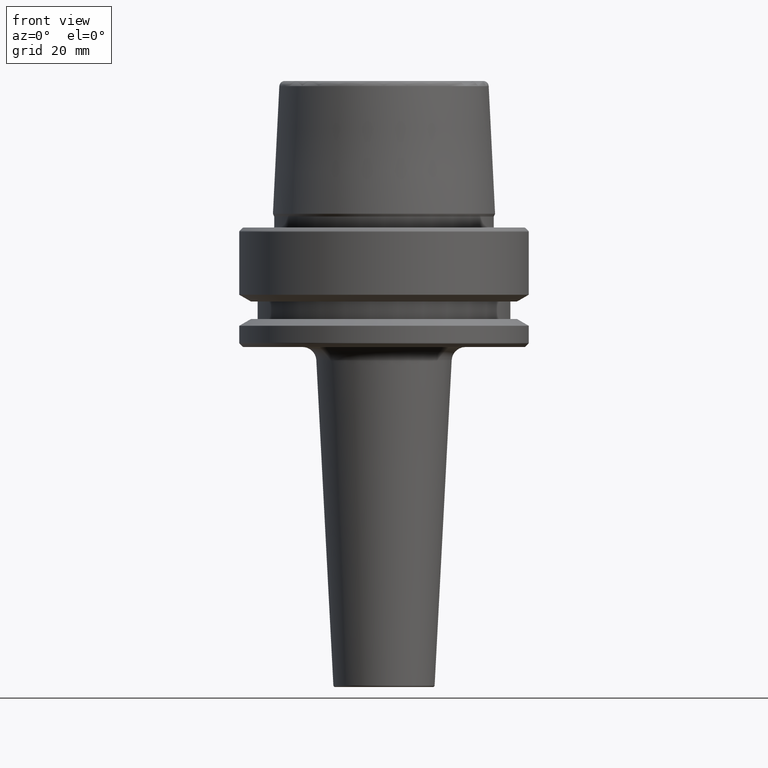
[diagram: clean part render]
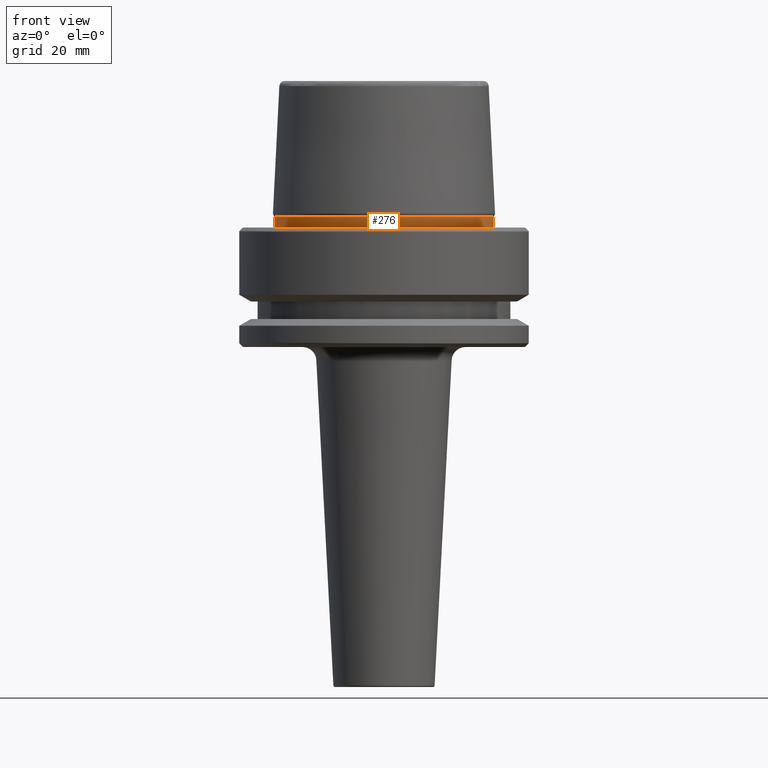
[diagram: same view with one face highlighted and labeled with its STEP entity id]
A machine part, front view. The second image highlights one B-rep face of the part: STEP entity #276.
In plain terms, the highlighted cylindrical surface (partial cylindrical patch) has radius 23.89 mm, axis along (-0, -0, 1).
Its self-contained STEP definition (entity closure, byte-faithful):
#17 = AXIS2_PLACEMENT_3D ( 'NONE', #280, #877, #300 ) ;
#59 = EDGE_CURVE ( 'NONE', #730, #761, #271, .T. ) ;
#76 = CARTESIAN_POINT ( 'NONE',  ( 23.89000000000000400, 0.0000000000000000000, 0.1312552021302954000 ) ) ;
#91 = AXIS2_PLACEMENT_3D ( 'NONE', #835, #385, #221 ) ;
#114 = AXIS2_PLACEMENT_3D ( 'NONE', #412, #433, #466 ) ;
#128 = ORIENTED_EDGE ( 'NONE', *, *, #474, .T. ) ;
#163 = CARTESIAN_POINT ( 'NONE',  ( -23.89000000000000400, 2.961613815265650600E-015, 0.1312552021302954000 ) ) ;
#213 = CARTESIAN_POINT ( 'NONE',  ( 23.89000000000000100, 0.0000000000000000000, 2.398838415132276100 ) ) ;
#220 = ORIENTED_EDGE ( 'NONE', *, *, #876, .T. ) ;
#221 = DIRECTION ( 'NONE',  ( 1.000000000000000000, 0.0000000000000000000, 0.0000000000000000000 ) ) ;
#271 = LINE ( 'NONE', #797, #1126 ) ;
#275 = CARTESIAN_POINT ( 'NONE',  ( 23.89000000000000100, 0.0000000000000000000, 78.96908074195309300 ) ) ;
#276 = ADVANCED_FACE ( 'NONE', ( #972 ), #1241, .T. ) ;
#280 = CARTESIAN_POINT ( 'NONE',  ( 0.0000000000000000000, 0.0000000000000000000, 2.398838415132276100 ) ) ;
#282 = LINE ( 'NONE', #275, #584 ) ;
#300 = DIRECTION ( 'NONE',  ( 1.000000000000000000, 0.0000000000000000000, 0.0000000000000000000 ) ) ;
#342 = DIRECTION ( 'NONE',  ( -0.0000000000000000000, -0.0000000000000000000, 1.000000000000000000 ) ) ;
#362 = VERTEX_POINT ( 'NONE', #76 ) ;
#385 = DIRECTION ( 'NONE',  ( -0.0000000000000000000, -0.0000000000000000000, 1.000000000000000000 ) ) ;
#412 = CARTESIAN_POINT ( 'NONE',  ( 0.0000000000000000000, 0.0000000000000000000, 78.96908074195309300 ) ) ;
#433 = DIRECTION ( 'NONE',  ( -0.0000000000000000000, -0.0000000000000000000, 1.000000000000000000 ) ) ;
#466 = DIRECTION ( 'NONE',  ( 1.000000000000000000, 0.0000000000000000000, 0.0000000000000000000 ) ) ;
#474 = EDGE_CURVE ( 'NONE', #362, #745, #282, .T. ) ;
#506 = CARTESIAN_POINT ( 'NONE',  ( -23.89000000000000100, 2.942846235451747500E-015, 2.398838415132276100 ) ) ;
#584 = VECTOR ( 'NONE', #645, 1000.000000000000000 ) ;
#645 = DIRECTION ( 'NONE',  ( -0.0000000000000000000, -0.0000000000000000000, 1.000000000000000000 ) ) ;
#730 = VERTEX_POINT ( 'NONE', #163 ) ;
#745 = VERTEX_POINT ( 'NONE', #213 ) ;
#750 = ORIENTED_EDGE ( 'NONE', *, *, #1251, .F. ) ;
#761 = VERTEX_POINT ( 'NONE', #506 ) ;
#777 = EDGE_LOOP ( 'NONE', ( #1256, #220, #128, #750 ) ) ;
#785 = CIRCLE ( 'NONE', #17, 23.89000000000000100 ) ;
#797 = CARTESIAN_POINT ( 'NONE',  ( -23.89000000000000100, 2.925681203163027000E-015, 78.96908074195309300 ) ) ;
#835 = CARTESIAN_POINT ( 'NONE',  ( 0.0000000000000000000, 0.0000000000000000000, 0.1312552021302954000 ) ) ;
#876 = EDGE_CURVE ( 'NONE', #730, #362, #1222, .T. ) ;
#877 = DIRECTION ( 'NONE',  ( -0.0000000000000000000, -0.0000000000000000000, 1.000000000000000000 ) ) ;
#972 = FACE_OUTER_BOUND ( 'NONE', #777, .T. ) ;
#1126 = VECTOR ( 'NONE', #342, 1000.000000000000000 ) ;
#1222 = CIRCLE ( 'NONE', #91, 23.89000000000000400 ) ;
#1241 = CYLINDRICAL_SURFACE ( 'NONE', #114, 23.89000000000000100 ) ;
#1251 = EDGE_CURVE ( 'NONE', #761, #745, #785, .T. ) ;
#1256 = ORIENTED_EDGE ( 'NONE', *, *, #59, .F. ) ;